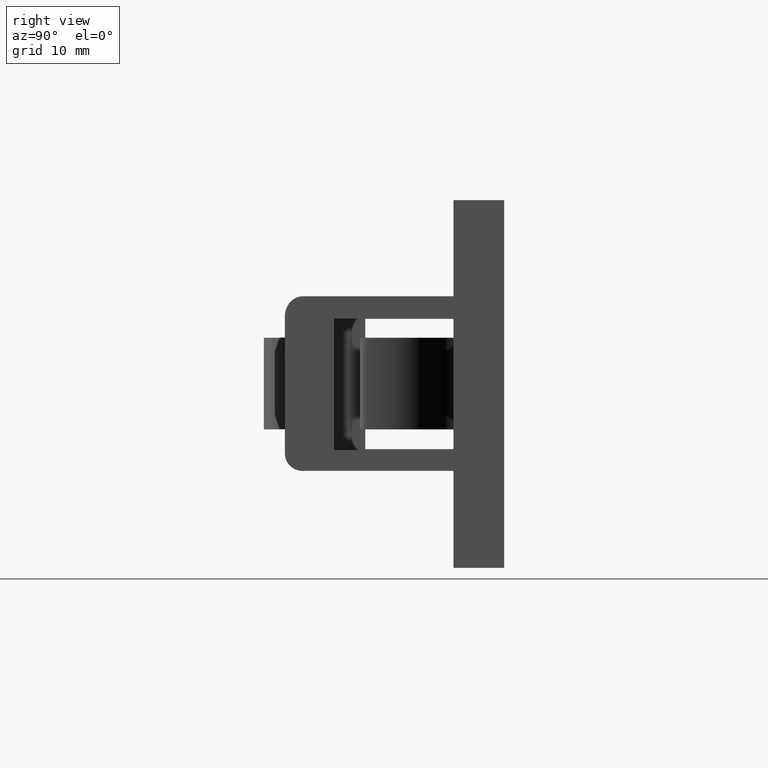
[diagram: clean part render]
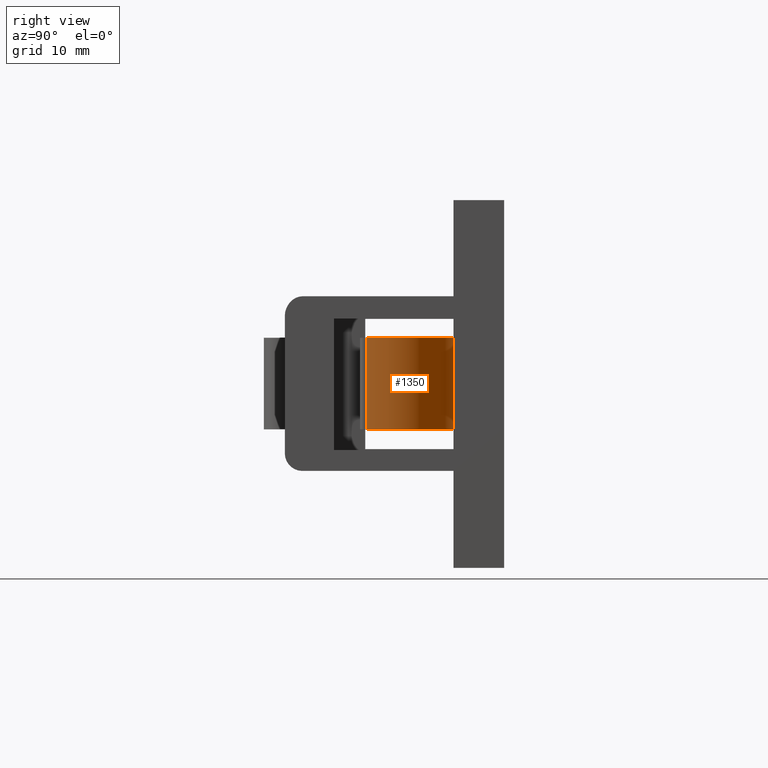
[diagram: same view with one face highlighted and labeled with its STEP entity id]
A machine part, right view. The second image highlights one B-rep face of the part: STEP entity #1350.
In plain terms, the highlighted cylindrical surface (partial cylindrical patch) has radius 10 mm, axis along (-0, -0, 1).
Its self-contained STEP definition (entity closure, byte-faithful):
#157=FACE_OUTER_BOUND('',#235,.T.);
#235=EDGE_LOOP('',(#1204,#1205,#1206,#1207));
#376=LINE('',#2270,#524);
#377=LINE('',#2273,#525);
#524=VECTOR('',#1877,10.5);
#525=VECTOR('',#1880,10.5);
#580=CIRCLE('',#1530,10.);
#581=CIRCLE('',#1531,10.);
#695=VERTEX_POINT('',#2266);
#696=VERTEX_POINT('',#2267);
#697=VERTEX_POINT('',#2269);
#698=VERTEX_POINT('',#2271);
#875=EDGE_CURVE('',#695,#696,#580,.T.);
#876=EDGE_CURVE('',#696,#697,#376,.T.);
#877=EDGE_CURVE('',#698,#697,#581,.T.);
#878=EDGE_CURVE('',#695,#698,#377,.T.);
#1204=ORIENTED_EDGE('',*,*,#875,.T.);
#1205=ORIENTED_EDGE('',*,*,#876,.T.);
#1206=ORIENTED_EDGE('',*,*,#877,.F.);
#1207=ORIENTED_EDGE('',*,*,#878,.F.);
#1290=CYLINDRICAL_SURFACE('',#1529,10.);
#1350=ADVANCED_FACE('',(#157),#1290,.T.);
#1529=AXIS2_PLACEMENT_3D('',#2265,#1873,#1874);
#1530=AXIS2_PLACEMENT_3D('',#2268,#1875,#1876);
#1531=AXIS2_PLACEMENT_3D('',#2272,#1878,#1879);
#1873=DIRECTION('center_axis',(1.,0.,0.));
#1874=DIRECTION('ref_axis',(0.,-1.,-7.105427E-16));
#1875=DIRECTION('center_axis',(1.,0.,0.));
#1876=DIRECTION('ref_axis',(0.,-1.,-7.105427E-16));
#1877=DIRECTION('',(1.,0.,0.));
#1878=DIRECTION('center_axis',(1.,0.,0.));
#1879=DIRECTION('ref_axis',(0.,-1.,-7.105427E-16));
#1880=DIRECTION('',(1.,0.,0.));
#2265=CARTESIAN_POINT('Origin',(-5.25,-2.,12.2));
#2266=CARTESIAN_POINT('',(-5.25,-12.,12.2));
#2267=CARTESIAN_POINT('',(-5.25,-2.,2.19999999999997));
#2268=CARTESIAN_POINT('Origin',(-5.25,-2.,12.2));
#2269=CARTESIAN_POINT('',(5.25,-2.,2.19999999999997));
#2270=CARTESIAN_POINT('',(-5.25,-2.,2.19999999999997));
#2271=CARTESIAN_POINT('',(5.25,-12.,12.2));
#2272=CARTESIAN_POINT('Origin',(5.25,-2.,12.2));
#2273=CARTESIAN_POINT('',(-5.25,-12.,12.2));